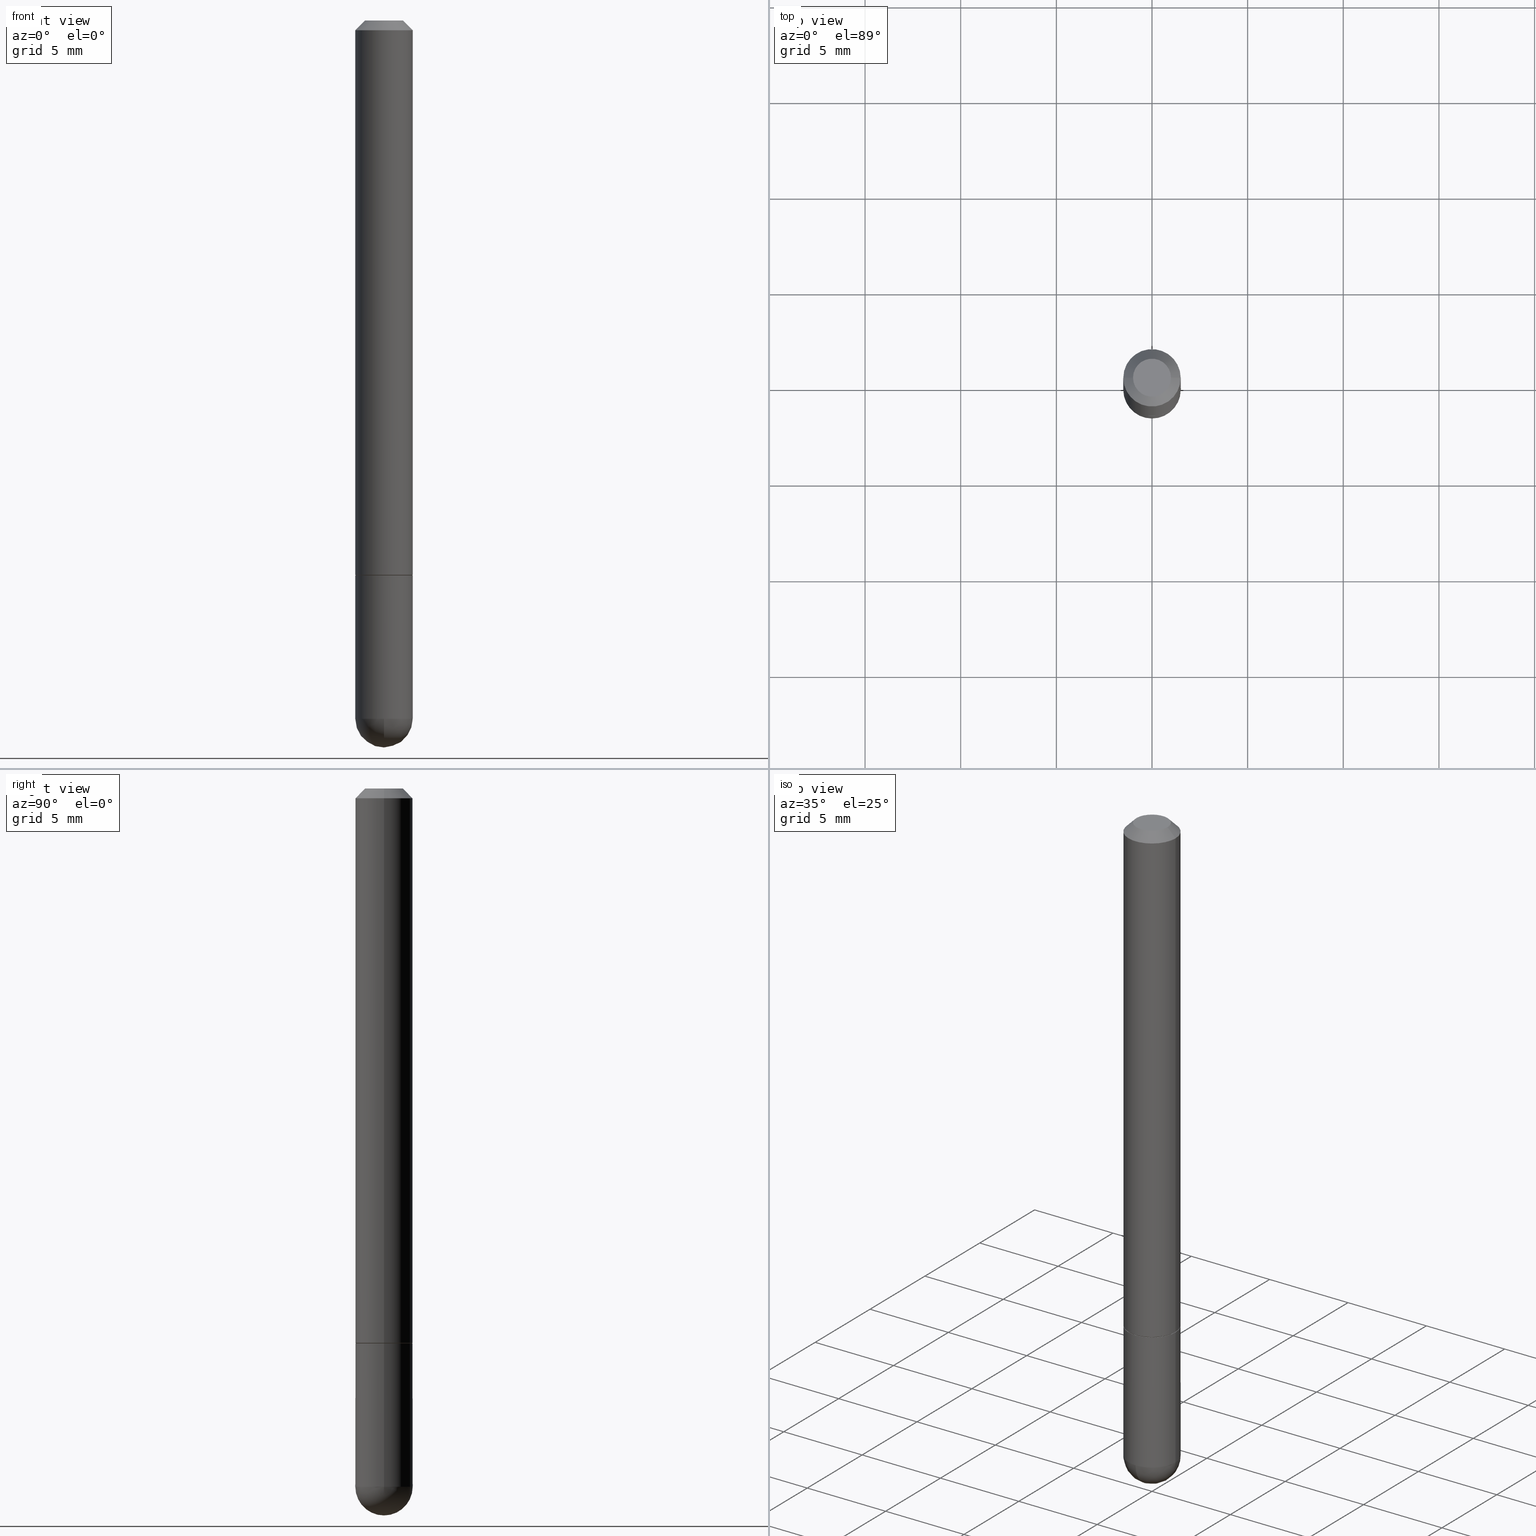
[diagram: canonical four-view strip — front | top / right | iso, engineering-drawing reading convention]
A machine part, canonical four-view strip (front | top / right | iso — engineering-drawing reading convention). The complete STEP part file that produces these views, byte-faithful:
ISO-10303-21;
HEADER;
FILE_DESCRIPTION (( 'STEP AP203' ),
    '1' );
FILE_NAME ('02979.STEP',
    '2024-02-21T16:34:43',
    ( '' ),
    ( '' ),
    'SwSTEP 2.0',
    'SolidWorks 2023',
    '' );
FILE_SCHEMA (( 'CONFIG_CONTROL_DESIGN' ));
ENDSEC;

DATA;
#1 = DIRECTION ( 'NONE',  ( 2.438088387897960049E-29, -3.491481338843145188E-15, -1.000000000000000000 ) ) ;
#2 = CIRCLE ( 'NONE', #124, 0.05905000000000000526 ) ;
#3 = LINE ( 'NONE', #385, #373 ) ;
#4 = PERSON_AND_ORGANIZATION ( #358, #25 ) ;
#5 = FACE_OUTER_BOUND ( 'NONE', #172, .T. ) ;
#6 = DIRECTION ( 'NONE',  ( 6.982962677686265922E-15, 1.000000000000000000, -4.626330217890349615E-15 ) ) ;
#7 = CARTESIAN_POINT ( 'NONE',  ( 3.183141170014464762E-29, -5.491615626124592102E-15, -1.437049999999999939 ) ) ;
#8 = VERTEX_POINT ( 'NONE', #74 ) ;
#9 = EDGE_LOOP ( 'NONE', ( #109, #371 ) ) ;
#10 = CARTESIAN_POINT ( 'NONE',  ( 0.05905000000000000526, -4.749420335452719692E-16, -0.02000000000000002123 ) ) ;
#11 = ORIENTED_EDGE ( 'NONE', *, *, #61, .T. ) ;
#12 = DIRECTION ( 'NONE',  ( -2.445468806185136597E-29, 3.491481338843145583E-15, 1.000000000000000000 ) ) ;
#13 = DIRECTION ( 'NONE',  ( 1.000000000000000000, -6.982962677686272233E-15, 0.000000000000000000 ) ) ;
#14 = VERTEX_POINT ( 'NONE', #170 ) ;
#15 = CIRCLE ( 'NONE', #31, 0.03905000000000004301 ) ;
#16 = CARTESIAN_POINT ( 'NONE',  ( 0.05905000000000000526, -4.749420335452719692E-16, -0.02000000000000002123 ) ) ;
#17 = CARTESIAN_POINT ( 'NONE',  ( 3.514260947928350449E-29, -5.017433257984542594E-15, -1.437049999999999939 ) ) ;
#18 = DIRECTION ( 'NONE',  ( -2.445468806185136597E-29, 3.491481338843145583E-15, 1.000000000000000000 ) ) ;
#19 = EDGE_LOOP ( 'NONE', ( #348, #47 ) ) ;
#20 = AXIS2_PLACEMENT_3D ( 'NONE', #121, #24, #210 ) ;
#21 = CLOSED_SHELL ( 'NONE', ( #95, #294, #126, #240, #145 ) ) ;
#22 = ORIENTED_EDGE ( 'NONE', *, *, #232, .F. ) ;
#23 = PERSON_AND_ORGANIZATION_ROLE ( 'design_owner' ) ;
#24 = DIRECTION ( 'NONE',  ( -2.445468806185136597E-29, 3.491481338843145583E-15, 1.000000000000000000 ) ) ;
#25 = ORGANIZATION ( 'UNSPECIFIED', 'UNSPECIFIED', '' ) ;
#26 = EDGE_CURVE ( 'NONE', #278, #397, #33, .T. ) ;
#27 = SECURITY_CLASSIFICATION_LEVEL ( 'unclassified' ) ;
#28 =( NAMED_UNIT ( * ) PLANE_ANGLE_UNIT ( ) SI_UNIT ( $, .RADIAN. ) );
#29 = VECTOR ( 'NONE', #69, 39.37007874015748143 ) ;
#30 = DESIGN_CONTEXT ( 'detailed design', #340, 'design' ) ;
#31 = AXIS2_PLACEMENT_3D ( 'NONE', #171, #207, #342 ) ;
#32 = CARTESIAN_POINT ( 'NONE',  ( 2.726846925636489647E-16, 0.03905000000000004301, -1.427451150169756154E-16 ) ) ;
#33 = LINE ( 'NONE', #369, #114 ) ;
#34 = APPROVAL_PERSON_ORGANIZATION ( #405, #186, #249 ) ;
#35 = AXIS2_PLACEMENT_3D ( 'NONE', #195, #301, #6 ) ;
#36 = CC_DESIGN_DATE_AND_TIME_ASSIGNMENT ( #248, #254, ( #260 ) ) ;
#37 = CARTESIAN_POINT ( 'NONE',  ( 2.792236282902187945E-29, -3.986573392691102533E-15, -1.141799999999999704 ) ) ;
#38 = DIRECTION ( 'NONE',  ( -2.445468806185136597E-29, 3.491481338843145583E-15, 1.000000000000000000 ) ) ;
#39 = VERTEX_POINT ( 'NONE', #44 ) ;
#40 = DIRECTION ( 'NONE',  ( -2.445468806185136597E-29, 3.491481338843145583E-15, 1.000000000000000000 ) ) ;
#41 = CARTESIAN_POINT ( 'NONE',  ( 2.792236282902187945E-29, -3.986573392691102533E-15, -1.141799999999999704 ) ) ;
#42 = ADVANCED_FACE ( 'NONE', ( #388 ), #307, .T. ) ;
#43 = ORIENTED_EDGE ( 'NONE', *, *, #213, .T. ) ;
#44 = CARTESIAN_POINT ( 'NONE',  ( -0.05905000000000001914, -4.082427839871483465E-15, -1.437049999999999939 ) ) ;
#45 = DIRECTION ( 'NONE',  ( -1.000000000000000000, 6.982962677686267499E-15, 0.000000000000000000 ) ) ;
#46 = LOCAL_TIME ( 11, 34, 43.00000000000000000, #376 ) ;
#47 = ORIENTED_EDGE ( 'NONE', *, *, #370, .T. ) ;
#48 = CARTESIAN_POINT ( 'NONE',  ( 2.792236282902188505E-29, -3.986573392691103322E-15, -1.141799999999999926 ) ) ;
#49 = DIRECTION ( 'NONE',  ( 1.000000000000000000, -6.982962677686267499E-15, 0.000000000000000000 ) ) ;
#50 = ORIENTED_EDGE ( 'NONE', *, *, #190, .T. ) ;
#51 = ADVANCED_BREP_SHAPE_REPRESENTATION ( '02979', ( #272, #127, #204 ), #220 ) ;
#52 = VECTOR ( 'NONE', #179, 39.37007874015748143 ) ;
#53 = ORIENTED_EDGE ( 'NONE', *, *, #398, .F. ) ;
#54 = CARTESIAN_POINT ( 'NONE',  ( 4.123439461174083974E-16, 0.05904999999999487742, -1.437050000000000161 ) ) ;
#55 = VERTEX_POINT ( 'NONE', #364 ) ;
#56 = CC_DESIGN_PERSON_AND_ORGANIZATION_ASSIGNMENT ( #4, #123, ( #349 ) ) ;
#57 = AXIS2_PLACEMENT_3D ( 'NONE', #299, #40, #275 ) ;
#58 = DIRECTION ( 'NONE',  ( -2.445468806185136597E-29, 3.491481338843145583E-15, 1.000000000000000000 ) ) ;
#59 = PERSON_AND_ORGANIZATION_ROLE ( 'classification_officer' ) ;
#60 = DIRECTION ( 'NONE',  ( 1.000000000000000000, -6.982962677686272233E-15, 0.000000000000000000 ) ) ;
#61 = EDGE_CURVE ( 'NONE', #79, #8, #351, .T. ) ;
#62 = COORDINATED_UNIVERSAL_TIME_OFFSET ( 5, 0, .BEHIND. ) ;
#63 = AXIS2_PLACEMENT_3D ( 'NONE', #81, #12, #105 ) ;
#64 = MECHANICAL_CONTEXT ( 'NONE', #73, 'mechanical' ) ;
#65 = LINE ( 'NONE', #188, #387 ) ;
#66 = ADVANCED_FACE ( 'NONE', ( #132 ), #279, .F. ) ;
#67 = CC_DESIGN_APPROVAL ( #284, ( #260 ) ) ;
#68 = CIRCLE ( 'NONE', #395, 0.05905000000000000526 ) ;
#69 = DIRECTION ( 'NONE',  ( -2.445468806185136877E-29, 3.491481338843145188E-15, 1.000000000000000000 ) ) ;
#70 = EDGE_CURVE ( 'NONE', #8, #79, #93, .T. ) ;
#71 = CARTESIAN_POINT ( 'NONE',  ( 3.330070981488499955E-29, -5.694171829508798064E-15, -1.496100000000000207 ) ) ;
#72 = PLANE ( 'NONE',  #216 ) ;
#73 = APPLICATION_CONTEXT ( 'configuration controlled 3d designs of mechanical parts and assemblies' ) ;
#74 = CARTESIAN_POINT ( 'NONE',  ( -0.05804999999999999744, -3.568804880234141646E-15, -1.141799999999999704 ) ) ;
#75 = ORIENTED_EDGE ( 'NONE', *, *, #410, .T. ) ;
#76 = CARTESIAN_POINT ( 'NONE',  ( 0.000000000000000000, 0.000000000000000000, 0.000000000000000000 ) ) ;
#77 = DIRECTION ( 'NONE',  ( -2.445468806185136597E-29, 3.491481338843145583E-15, 1.000000000000000000 ) ) ;
#78 = ORIENTED_EDGE ( 'NONE', *, *, #263, .F. ) ;
#79 = VERTEX_POINT ( 'NONE', #100 ) ;
#80 = EDGE_LOOP ( 'NONE', ( #11, #85, #112, #343 ) ) ;
#81 = CARTESIAN_POINT ( 'NONE',  ( 0.000000000000000000, 0.000000000000000000, 0.000000000000000000 ) ) ;
#82 = DIRECTION ( 'NONE',  ( 1.000000000000000000, -6.982962677686265133E-15, 0.000000000000000000 ) ) ;
#83 = VERTEX_POINT ( 'NONE', #71 ) ;
#84 =( LENGTH_UNIT ( ) NAMED_UNIT ( * ) SI_UNIT ( $, .METRE. ) );
#85 = ORIENTED_EDGE ( 'NONE', *, *, #253, .T. ) ;
#86 = CARTESIAN_POINT ( 'NONE',  ( 0.000000000000000000, 0.000000000000000000, 0.000000000000000000 ) ) ;
#87 = VERTEX_POINT ( 'NONE', #16 ) ;
#88 = AXIS2_PLACEMENT_3D ( 'NONE', #37, #332, #205 ) ;
#89 = APPROVAL_STATUS ( 'not_yet_approved' ) ;
#90 = DIRECTION ( 'NONE',  ( -7.105427357601001070E-15, -1.000000000000000000, 0.000000000000000000 ) ) ;
#91 = DIMENSIONAL_EXPONENTS ( 1.000000000000000000, 0.000000000000000000, 0.000000000000000000, 0.000000000000000000, 0.000000000000000000, 0.000000000000000000, 0.000000000000000000 ) ;
#92 = APPLICATION_PROTOCOL_DEFINITION ( 'international standard', 'config_control_design', 1994, #73 ) ;
#93 = CIRCLE ( 'NONE', #57, 0.05804999999999999744 ) ;
#94 = DIRECTION ( 'NONE',  ( -1.000000000000000000, 6.982962677686265922E-15, -4.876176775795935793E-29 ) ) ;
#95 = ADVANCED_FACE ( 'NONE', ( #5 ), #134, .T. ) ;
#96 = EDGE_CURVE ( 'NONE', #79, #394, #396, .T. ) ;
#97 = LINE ( 'NONE', #224, #29 ) ;
#98 = CALENDAR_DATE ( 2024, 21, 2 ) ;
#99 = VECTOR ( 'NONE', #293, 39.37007874015748143 ) ;
#100 = CARTESIAN_POINT ( 'NONE',  ( 0.05804999999999999744, -4.391934376130790650E-15, -1.141799999999999704 ) ) ;
#101 = SPHERICAL_SURFACE ( 'NONE', #178, 0.05905000000000025506 ) ;
#102 = FACE_OUTER_BOUND ( 'NONE', #147, .T. ) ;
#103 = DIRECTION ( 'NONE',  ( 1.000000000000000000, -6.982962677686272233E-15, 0.000000000000000000 ) ) ;
#104 = ORIENTED_EDGE ( 'NONE', *, *, #61, .F. ) ;
#105 = DIRECTION ( 'NONE',  ( 1.000000000000000000, -6.982962677686266711E-15, 4.876176775795936353E-29 ) ) ;
#106 = FACE_OUTER_BOUND ( 'NONE', #283, .T. ) ;
#107 = ORIENTED_EDGE ( 'NONE', *, *, #410, .F. ) ;
#108 = AXIS2_PLACEMENT_3D ( 'NONE', #305, #312, #82 ) ;
#109 = ORIENTED_EDGE ( 'NONE', *, *, #129, .T. ) ;
#110 = CARTESIAN_POINT ( 'NONE',  ( -0.05804999999999999744, -3.574103334582364048E-15, -1.141799999999999704 ) ) ;
#111 = ORIENTED_EDGE ( 'NONE', *, *, #370, .F. ) ;
#112 = ORIENTED_EDGE ( 'NONE', *, *, #119, .F. ) ;
#113 = CARTESIAN_POINT ( 'NONE',  ( -4.195754854663065087E-16, -0.05905000000000538291, -1.437049999999999716 ) ) ;
#114 = VECTOR ( 'NONE', #236, 39.37007874015748143 ) ;
#115 = CC_DESIGN_PERSON_AND_ORGANIZATION_ASSIGNMENT ( #184, #319, ( #177 ) ) ;
#116 = DIRECTION ( 'NONE',  ( -2.445468806185136597E-29, 3.491481338843145583E-15, 1.000000000000000000 ) ) ;
#117 = CARTESIAN_POINT ( 'NONE',  ( 3.131554243005667043E-46, -4.471029511141352822E-32, -1.280553747030126465E-17 ) ) ;
#118 = ORIENTED_EDGE ( 'NONE', *, *, #287, .T. ) ;
#119 = EDGE_CURVE ( 'NONE', #394, #281, #221, .T. ) ;
#120 = APPROVAL_STATUS ( 'not_yet_approved' ) ;
#121 = CARTESIAN_POINT ( 'NONE',  ( 2.789790814096003463E-29, -3.983081911352260315E-15, -1.140799999999999814 ) ) ;
#122 = CIRCLE ( 'NONE', #266, 0.05905000000000000526 ) ;
#123 = PERSON_AND_ORGANIZATION_ROLE ( 'design_supplier' ) ;
#124 = AXIS2_PLACEMENT_3D ( 'NONE', #245, #151, #60 ) ;
#125 = SHAPE_DEFINITION_REPRESENTATION ( #194, #51 ) ;
#126 = ADVANCED_FACE ( 'NONE', ( #359 ), #198, .T. ) ;
#127 = MANIFOLD_SOLID_BREP ( 'Body-Move/Copy2[2]', #242 ) ;
#128 = DIRECTION ( 'NONE',  ( 1.000000000000000000, -6.982962677686272233E-15, 0.000000000000000000 ) ) ;
#129 = EDGE_CURVE ( 'NONE', #274, #200, #160, .T. ) ;
#130 = DIRECTION ( 'NONE',  ( 1.000000000000000000, -6.982962677686266711E-15, 4.876176775795936353E-29 ) ) ;
#131 = AXIS2_PLACEMENT_3D ( 'NONE', #41, #38, #103 ) ;
#132 = FACE_OUTER_BOUND ( 'NONE', #149, .T. ) ;
#133 = CARTESIAN_POINT ( 'NONE',  ( 3.183141170014464762E-29, -5.491615626124592102E-15, -1.437049999999999939 ) ) ;
#134 = CYLINDRICAL_SURFACE ( 'NONE', #402, 0.05904999999999999832 ) ;
#135 = LOCAL_TIME ( 11, 34, 43.00000000000000000, #152 ) ;
#136 = CARTESIAN_POINT ( 'NONE',  ( 2.792236282902187945E-29, -3.986573392691102533E-15, -1.141799999999999704 ) ) ;
#137 = ORIENTED_EDGE ( 'NONE', *, *, #26, .F. ) ;
#138 = DIRECTION ( 'NONE',  ( 1.000000000000000000, -6.982962677686265922E-15, 4.876176775795935793E-29 ) ) ;
#139 = DIRECTION ( 'NONE',  ( 2.438088387897960049E-29, -3.491481338843145188E-15, -1.000000000000000000 ) ) ;
#140 = ORIENTED_EDGE ( 'NONE', *, *, #129, .F. ) ;
#141 = CIRCLE ( 'NONE', #379, 0.05905000000000000526 ) ;
#142 = ORIENTED_EDGE ( 'NONE', *, *, #154, .T. ) ;
#143 = CARTESIAN_POINT ( 'NONE',  ( 4.890937612370278413E-31, -6.982962677686297772E-17, -0.02000000000000002123 ) ) ;
#144 = ORIENTED_EDGE ( 'NONE', *, *, #346, .T. ) ;
#145 = ADVANCED_FACE ( 'NONE', ( #102 ), #230, .T. ) ;
#146 = CARTESIAN_POINT ( 'NONE',  ( 4.890937612370278413E-31, -6.982962677686297772E-17, -0.02000000000000002123 ) ) ;
#147 = EDGE_LOOP ( 'NONE', ( #285, #142, #144, #390, #308 ) ) ;
#148 = CIRCLE ( 'NONE', #215, 0.05905000000000000526 ) ;
#149 = EDGE_LOOP ( 'NONE', ( #104, #246 ) ) ;
#150 = CALENDAR_DATE ( 2024, 21, 2 ) ;
#151 = DIRECTION ( 'NONE',  ( -2.445468806185136597E-29, 3.491481338843145583E-15, 1.000000000000000000 ) ) ;
#152 = COORDINATED_UNIVERSAL_TIME_OFFSET ( 5, 0, .BEHIND. ) ;
#153 = LOCAL_TIME ( 11, 34, 43.00000000000000000, #62 ) ;
#154 = EDGE_CURVE ( 'NONE', #39, #337, #148, .T. ) ;
#155 = AXIS2_PLACEMENT_3D ( 'NONE', #403, #372, #185 ) ;
#156 = DIRECTION ( 'NONE',  ( 1.000000000000000000, 0.000000000000000000, 0.000000000000000000 ) ) ;
#157 = ADVANCED_FACE ( 'NONE', ( #256 ), #383, .F. ) ;
#158 = DIRECTION ( 'NONE',  ( -2.445468806185136877E-29, 3.491481338843145188E-15, 1.000000000000000000 ) ) ;
#159 = CIRCLE ( 'NONE', #320, 0.05905000000000025506 ) ;
#160 = CIRCLE ( 'NONE', #182, 0.05904999999999999832 ) ;
#161 = EDGE_CURVE ( 'NONE', #87, #397, #409, .T. ) ;
#162 = AXIS2_PLACEMENT_3D ( 'NONE', #365, #368, #45 ) ;
#163 = DIRECTION ( 'NONE',  ( 1.000000000000000000, -6.982962677686267499E-15, 0.000000000000000000 ) ) ;
#164 = EDGE_LOOP ( 'NONE', ( #209, #233, #203, #235 ) ) ;
#165 = DIRECTION ( 'NONE',  ( -2.445468806185136597E-29, 3.491481338843145583E-15, 1.000000000000000000 ) ) ;
#166 = ORIENTED_EDGE ( 'NONE', *, *, #161, .F. ) ;
#167 = CARTESIAN_POINT ( 'NONE',  ( 0.05804999999999999744, -4.391934376130790650E-15, -1.141799999999999704 ) ) ;
#168 = ORIENTED_EDGE ( 'NONE', *, *, #398, .T. ) ;
#169 = LOCAL_TIME ( 11, 34, 43.00000000000000000, #223 ) ;
#170 = CARTESIAN_POINT ( 'NONE',  ( 0.05905000000000001914, -4.914347271455197089E-15, -1.437049999999999939 ) ) ;
#171 = CARTESIAN_POINT ( 'NONE',  ( 3.131554243005667043E-46, -4.471029511141352822E-32, -1.280553747030126465E-17 ) ) ;
#172 = EDGE_LOOP ( 'NONE', ( #375, #176, #140, #316, #75 ) ) ;
#173 = EDGE_CURVE ( 'NONE', #39, #200, #3, .T. ) ;
#174 = EDGE_LOOP ( 'NONE', ( #269, #366, #238, #345 ) ) ;
#175 = FACE_OUTER_BOUND ( 'NONE', #338, .T. ) ;
#176 = ORIENTED_EDGE ( 'NONE', *, *, #173, .T. ) ;
#177 = PRODUCT_DEFINITION ( 'UNKNOWN', '', #349, #30 ) ;
#178 = AXIS2_PLACEMENT_3D ( 'NONE', #133, #268, #389 ) ;
#179 = DIRECTION ( 'NONE',  ( -0.7071067811866652564, 7.493145998870780145E-15, 0.7071067811864297781 ) ) ;
#180 = DIRECTION ( 'NONE',  ( 1.000000000000000000, -6.982962677686272233E-15, 0.000000000000000000 ) ) ;
#181 = EDGE_LOOP ( 'NONE', ( #303, #43, #166, #363 ) ) ;
#182 = AXIS2_PLACEMENT_3D ( 'NONE', #48, #227, #267 ) ;
#183 = PERSON_AND_ORGANIZATION ( #358, #25 ) ;
#184 = PERSON_AND_ORGANIZATION ( #358, #25 ) ;
#185 = DIRECTION ( 'NONE',  ( 1.000000000000000000, -6.982962677686266711E-15, 4.876176775795936353E-29 ) ) ;
#186 = APPROVAL ( #120, 'UNSPECIFIED' ) ;
#187 = CIRCLE ( 'NONE', #108, 0.05904999999999999832 ) ;
#188 = CARTESIAN_POINT ( 'NONE',  ( 0.05905000000000006771, -4.123439461173745257E-16, 2.879382386107503723E-30 ) ) ;
#189 = CARTESIAN_POINT ( 'NONE',  ( 4.890937612370278413E-31, -6.982962677686297772E-17, -0.02000000000000002123 ) ) ;
#190 = EDGE_CURVE ( 'NONE', #394, #87, #65, .T. ) ;
#191 = LINE ( 'NONE', #329, #99 ) ;
#192 = PERSON_AND_ORGANIZATION_ROLE ( 'creator' ) ;
#193 = LOCAL_TIME ( 11, 34, 43.00000000000000000, #411 ) ;
#194 = PRODUCT_DEFINITION_SHAPE ( 'NONE', 'NONE',  #177 ) ;
#195 = CARTESIAN_POINT ( 'NONE',  ( 3.183141170014464762E-29, -5.491615626124592102E-15, -1.437049999999999939 ) ) ;
#196 = CARTESIAN_POINT ( 'NONE',  ( -0.05905000000000013710, -1.606880283598219355E-15, -1.140799999999999814 ) ) ;
#197 = APPROVAL ( #225, 'UNSPECIFIED' ) ;
#198 = SPHERICAL_SURFACE ( 'NONE', #35, 0.05905000000000025506 ) ;
#199 = DIRECTION ( 'NONE',  ( 0.7071067811865467956, -7.319954787623254468E-15, -0.7071067811865482389 ) ) ;
#200 = VERTEX_POINT ( 'NONE', #261 ) ;
#201 = ORIENTED_EDGE ( 'NONE', *, *, #213, .F. ) ;
#202 = DIRECTION ( 'NONE',  ( -2.445468806185136597E-29, 3.491481338843145583E-15, 1.000000000000000000 ) ) ;
#203 = ORIENTED_EDGE ( 'NONE', *, *, #96, .T. ) ;
#204 = AXIS2_PLACEMENT_3D ( 'NONE', #86, #347, #156 ) ;
#205 = DIRECTION ( 'NONE',  ( 1.000000000000000000, -6.982962677686272233E-15, 0.000000000000000000 ) ) ;
#206 = EDGE_CURVE ( 'NONE', #14, #274, #97, .T. ) ;
#207 = DIRECTION ( 'NONE',  ( -2.445468806185136597E-29, 3.491481338843145583E-15, 1.000000000000000000 ) ) ;
#208 = LINE ( 'NONE', #10, #344 ) ;
#209 = ORIENTED_EDGE ( 'NONE', *, *, #253, .F. ) ;
#210 = DIRECTION ( 'NONE',  ( 1.000000000000000000, -6.982962677686265133E-15, 0.000000000000000000 ) ) ;
#211 = APPROVAL_PERSON_ORGANIZATION ( #330, #197, #326 ) ;
#212 = AXIS2_PLACEMENT_3D ( 'NONE', #76, #361, #333 ) ;
#213 = EDGE_CURVE ( 'NONE', #281, #397, #191, .T. ) ;
#214 = CYLINDRICAL_SURFACE ( 'NONE', #155, 0.05905000000000006771 ) ;
#215 = AXIS2_PLACEMENT_3D ( 'NONE', #270, #296, #128 ) ;
#216 = AXIS2_PLACEMENT_3D ( 'NONE', #302, #139, #362 ) ;
#217 = CALENDAR_DATE ( 2024, 21, 2 ) ;
#218 = APPROVAL_DATE_TIME ( #380, #284 ) ;
#219 = CC_DESIGN_PERSON_AND_ORGANIZATION_ASSIGNMENT ( #292, #59, ( #260 ) ) ;
#220 =( GEOMETRIC_REPRESENTATION_CONTEXT ( 3 ) GLOBAL_UNCERTAINTY_ASSIGNED_CONTEXT ( ( #314 ) ) GLOBAL_UNIT_ASSIGNED_CONTEXT ( ( #290, #28, #322 ) ) REPRESENTATION_CONTEXT ( 'NONE', 'WORKASPACE' ) );
#221 = CIRCLE ( 'NONE', #315, 0.05905000000000013016 ) ;
#222 = CALENDAR_DATE ( 2024, 21, 2 ) ;
#223 = COORDINATED_UNIVERSAL_TIME_OFFSET ( 5, 0, .BEHIND. ) ;
#224 = CARTESIAN_POINT ( 'NONE',  ( 0.05904999999999999832, -4.123439461173740327E-16, 2.879382386107500220E-30 ) ) ;
#225 = APPROVAL_STATUS ( 'not_yet_approved' ) ;
#226 = CONICAL_SURFACE ( 'NONE', #131, 0.05804999999999999744, 0.7853981633976148125 ) ;
#227 = DIRECTION ( 'NONE',  ( -2.445468806185136597E-29, 3.491481338843145583E-15, 1.000000000000000000 ) ) ;
#228 = LINE ( 'NONE', #110, #52 ) ;
#229 = CC_DESIGN_DATE_AND_TIME_ASSIGNMENT ( #300, #360, ( #177 ) ) ;
#230 = CYLINDRICAL_SURFACE ( 'NONE', #212, 0.05904999999999999832 ) ;
#231 = VECTOR ( 'NONE', #367, 39.37007874015748143 ) ;
#232 = EDGE_CURVE ( 'NONE', #374, #39, #68, .T. ) ;
#233 = ORIENTED_EDGE ( 'NONE', *, *, #70, .T. ) ;
#234 = FACE_OUTER_BOUND ( 'NONE', #80, .T. ) ;
#235 = ORIENTED_EDGE ( 'NONE', *, *, #355, .F. ) ;
#236 = DIRECTION ( 'NONE',  ( -0.7071067811865467956, 2.468850131082249172E-15, -0.7071067811865482389 ) ) ;
#237 = FACE_OUTER_BOUND ( 'NONE', #174, .T. ) ;
#238 = ORIENTED_EDGE ( 'NONE', *, *, #26, .T. ) ;
#239 = ORIENTED_EDGE ( 'NONE', *, *, #161, .T. ) ;
#240 = ADVANCED_FACE ( 'NONE', ( #241 ), #72, .F. ) ;
#241 = FACE_OUTER_BOUND ( 'NONE', #9, .T. ) ;
#242 = CLOSED_SHELL ( 'NONE', ( #298, #42, #328, #318, #350, #262, #66, #157 ) ) ;
#243 = EDGE_LOOP ( 'NONE', ( #53, #118, #107, #306 ) ) ;
#244 = APPROVAL_DATE_TIME ( #407, #186 ) ;
#245 = CARTESIAN_POINT ( 'NONE',  ( 3.514260947928350449E-29, -5.017433257984542594E-15, -1.437049999999999939 ) ) ;
#246 = ORIENTED_EDGE ( 'NONE', *, *, #70, .F. ) ;
#247 = EDGE_CURVE ( 'NONE', #200, #274, #187, .T. ) ;
#248 = DATE_AND_TIME ( #150, #153 ) ;
#249 = APPROVAL_ROLE ( '' ) ;
#250 = EDGE_CURVE ( 'NONE', #55, #87, #208, .T. ) ;
#251 = DIRECTION ( 'NONE',  ( 1.000000000000000000, -6.982962677686266711E-15, 4.878561691827482436E-29 ) ) ;
#252 = CIRCLE ( 'NONE', #20, 0.05905000000000013016 ) ;
#253 = EDGE_CURVE ( 'NONE', #8, #281, #228, .T. ) ;
#254 = DATE_TIME_ROLE ( 'classification_date' ) ;
#255 = CALENDAR_DATE ( 2024, 21, 2 ) ;
#256 = FACE_OUTER_BOUND ( 'NONE', #19, .T. ) ;
#257 = AXIS2_PLACEMENT_3D ( 'NONE', #117, #116, #251 ) ;
#258 = AXIS2_PLACEMENT_3D ( 'NONE', #331, #399, #138 ) ;
#259 = DATE_AND_TIME ( #98, #169 ) ;
#260 = SECURITY_CLASSIFICATION ( '', '', #27 ) ;
#261 = CARTESIAN_POINT ( 'NONE',  ( -0.05904999999999999832, -4.082427839871483465E-15, -1.141799999999999926 ) ) ;
#262 = ADVANCED_FACE ( 'NONE', ( #273 ), #291, .T. ) ;
#263 = EDGE_CURVE ( 'NONE', #397, #87, #122, .T. ) ;
#264 = PERSON_AND_ORGANIZATION ( #358, #25 ) ;
#265 = CARTESIAN_POINT ( 'NONE',  ( 2.789790814096003463E-29, -3.983081911352260315E-15, -1.140799999999999814 ) ) ;
#266 = AXIS2_PLACEMENT_3D ( 'NONE', #146, #202, #49 ) ;
#267 = DIRECTION ( 'NONE',  ( 1.000000000000000000, -6.982962677686265133E-15, 0.000000000000000000 ) ) ;
#268 = DIRECTION ( 'NONE',  ( -1.000000000000000000, 6.982962677686265922E-15, -4.883557194083112340E-29 ) ) ;
#269 = ORIENTED_EDGE ( 'NONE', *, *, #250, .F. ) ;
#270 = CARTESIAN_POINT ( 'NONE',  ( 3.514260947928350449E-29, -5.017433257984542594E-15, -1.437049999999999939 ) ) ;
#271 = CARTESIAN_POINT ( 'NONE',  ( 0.000000000000000000, 0.000000000000000000, 0.000000000000000000 ) ) ;
#272 = MANIFOLD_SOLID_BREP ( 'Body-Move/Copy2[1]', #21 ) ;
#273 = FACE_OUTER_BOUND ( 'NONE', #164, .T. ) ;
#274 = VERTEX_POINT ( 'NONE', #334 ) ;
#275 = DIRECTION ( 'NONE',  ( 1.000000000000000000, -6.982962677686272233E-15, 0.000000000000000000 ) ) ;
#276 = DIRECTION ( 'NONE',  ( 1.000000000000000000, -6.982962677686265922E-15, 4.883557194083112340E-29 ) ) ;
#277 = CONICAL_SURFACE ( 'NONE', #327, 0.05905000000000000526, 0.7853981633974472798 ) ;
#278 = VERTEX_POINT ( 'NONE', #393 ) ;
#279 = PLANE ( 'NONE',  #258 ) ;
#280 = DIRECTION ( 'NONE',  ( 2.445468806185136597E-29, -3.491481338843145583E-15, -1.000000000000000000 ) ) ;
#281 = VERTEX_POINT ( 'NONE', #196 ) ;
#282 = DIRECTION ( 'NONE',  ( 6.982962677686266711E-15, 1.000000000000000000, 0.000000000000000000 ) ) ;
#283 = EDGE_LOOP ( 'NONE', ( #404, #168, #309, #22 ) ) ;
#284 = APPROVAL ( #89, 'UNSPECIFIED' ) ;
#285 = ORIENTED_EDGE ( 'NONE', *, *, #173, .F. ) ;
#286 = APPLICATION_PROTOCOL_DEFINITION ( 'international standard', 'config_control_design', 1994, #340 ) ;
#287 = EDGE_CURVE ( 'NONE', #83, #374, #356, .T. ) ;
#288 = APPROVAL_PERSON_ORGANIZATION ( #183, #284, #382 ) ;
#289 = FACE_OUTER_BOUND ( 'NONE', #304, .T. ) ;
#290 =( CONVERSION_BASED_UNIT ( 'INCH', #323 ) LENGTH_UNIT ( ) NAMED_UNIT ( #91 ) );
#291 = CONICAL_SURFACE ( 'NONE', #311, 0.05804999999999999744, 0.7853981633976148125 ) ;
#292 = PERSON_AND_ORGANIZATION ( #358, #25 ) ;
#293 = DIRECTION ( 'NONE',  ( -2.445468806185136877E-29, 3.491481338843145188E-15, 1.000000000000000000 ) ) ;
#294 = ADVANCED_FACE ( 'NONE', ( #106 ), #101, .T. ) ;
#295 = AXIS2_PLACEMENT_3D ( 'NONE', #189, #386, #163 ) ;
#296 = DIRECTION ( 'NONE',  ( -2.445468806185136597E-29, 3.491481338843145583E-15, 1.000000000000000000 ) ) ;
#297 = CC_DESIGN_APPROVAL ( #197, ( #349 ) ) ;
#298 = ADVANCED_FACE ( 'NONE', ( #234 ), #226, .T. ) ;
#299 = CARTESIAN_POINT ( 'NONE',  ( 2.792236282902187945E-29, -3.986573392691102533E-15, -1.141799999999999704 ) ) ;
#300 = DATE_AND_TIME ( #217, #135 ) ;
#301 = DIRECTION ( 'NONE',  ( -1.000000000000000000, 6.982962677686265922E-15, -4.883557194083112340E-29 ) ) ;
#302 = CARTESIAN_POINT ( 'NONE',  ( 4.123439461174018893E-16, 0.05904999999999601540, -1.141800000000000148 ) ) ;
#303 = ORIENTED_EDGE ( 'NONE', *, *, #119, .T. ) ;
#304 = EDGE_LOOP ( 'NONE', ( #201, #313, #50, #78 ) ) ;
#305 = CARTESIAN_POINT ( 'NONE',  ( 2.792236282902188505E-29, -3.986573392691103322E-15, -1.141799999999999926 ) ) ;
#306 = ORIENTED_EDGE ( 'NONE', *, *, #346, .F. ) ;
#307 = CYLINDRICAL_SURFACE ( 'NONE', #63, 0.05905000000000006771 ) ;
#308 = ORIENTED_EDGE ( 'NONE', *, *, #247, .F. ) ;
#309 = ORIENTED_EDGE ( 'NONE', *, *, #154, .F. ) ;
#310 = DIRECTION ( 'NONE',  ( 1.000000000000000000, -6.982962677686272233E-15, 0.000000000000000000 ) ) ;
#311 = AXIS2_PLACEMENT_3D ( 'NONE', #136, #18, #13 ) ;
#312 = DIRECTION ( 'NONE',  ( -2.445468806185136597E-29, 3.491481338843145583E-15, 1.000000000000000000 ) ) ;
#313 = ORIENTED_EDGE ( 'NONE', *, *, #355, .T. ) ;
#314 = UNCERTAINTY_MEASURE_WITH_UNIT (LENGTH_MEASURE( 1.000000000000000082E-05 ), #290, 'distance_accuracy_value', 'NONE');
#315 = AXIS2_PLACEMENT_3D ( 'NONE', #265, #392, #341 ) ;
#316 = ORIENTED_EDGE ( 'NONE', *, *, #206, .F. ) ;
#317 = PERSON_AND_ORGANIZATION ( #358, #25 ) ;
#318 = ADVANCED_FACE ( 'NONE', ( #237 ), #353, .T. ) ;
#319 = PERSON_AND_ORGANIZATION_ROLE ( 'creator' ) ;
#320 = AXIS2_PLACEMENT_3D ( 'NONE', #352, #381, #90 ) ;
#321 = CC_DESIGN_APPROVAL ( #186, ( #177 ) ) ;
#322 =( NAMED_UNIT ( * ) SI_UNIT ( $, .STERADIAN. ) SOLID_ANGLE_UNIT ( ) );
#323 = LENGTH_MEASURE_WITH_UNIT ( LENGTH_MEASURE( 0.02539999999999999897 ), #84 );
#324 = AXIS2_PLACEMENT_3D ( 'NONE', #7, #276, #282 ) ;
#325 = EDGE_CURVE ( 'NONE', #278, #55, #15, .T. ) ;
#326 = APPROVAL_ROLE ( '' ) ;
#327 = AXIS2_PLACEMENT_3D ( 'NONE', #143, #280, #400 ) ;
#328 = ADVANCED_FACE ( 'NONE', ( #175 ), #277, .T. ) ;
#329 = CARTESIAN_POINT ( 'NONE',  ( -0.05905000000000006771, 4.195754854663396409E-16, -2.904631170795525045E-30 ) ) ;
#330 = PERSON_AND_ORGANIZATION ( #358, #25 ) ;
#331 = CARTESIAN_POINT ( 'NONE',  ( 2.792236282902188505E-29, -3.986573392691103322E-15, -1.141799999999999926 ) ) ;
#332 = DIRECTION ( 'NONE',  ( -2.445468806185136597E-29, 3.491481338843145583E-15, 1.000000000000000000 ) ) ;
#333 = DIRECTION ( 'NONE',  ( 1.000000000000000000, -6.982962677686266711E-15, 4.876176775795936353E-29 ) ) ;
#334 = CARTESIAN_POINT ( 'NONE',  ( 0.05904999999999999832, -4.398917338808476664E-15, -1.141799999999999926 ) ) ;
#335 = PRODUCT ( '02979', '02979', '', ( #64 ) ) ;
#336 = CC_DESIGN_PERSON_AND_ORGANIZATION_ASSIGNMENT ( #264, #192, ( #349 ) ) ;
#337 = VERTEX_POINT ( 'NONE', #113 ) ;
#338 = EDGE_LOOP ( 'NONE', ( #111, #401, #239, #137 ) ) ;
#339 = CIRCLE ( 'NONE', #257, 0.03905000000000004301 ) ;
#340 = APPLICATION_CONTEXT ( 'configuration controlled 3d designs of mechanical parts and assemblies' ) ;
#341 = DIRECTION ( 'NONE',  ( 1.000000000000000000, -6.982962677686265133E-15, 0.000000000000000000 ) ) ;
#342 = DIRECTION ( 'NONE',  ( 1.000000000000000000, -6.982962677686266711E-15, 4.878561691827482436E-29 ) ) ;
#343 = ORIENTED_EDGE ( 'NONE', *, *, #96, .F. ) ;
#344 = VECTOR ( 'NONE', #199, 39.37007874015748143 ) ;
#345 = ORIENTED_EDGE ( 'NONE', *, *, #263, .T. ) ;
#346 = EDGE_CURVE ( 'NONE', #337, #14, #141, .T. ) ;
#347 = DIRECTION ( 'NONE',  ( 0.000000000000000000, 0.000000000000000000, 1.000000000000000000 ) ) ;
#348 = ORIENTED_EDGE ( 'NONE', *, *, #325, .T. ) ;
#349 = PRODUCT_DEFINITION_FORMATION_WITH_SPECIFIED_SOURCE ( 'ANY', '', #335, .NOT_KNOWN. ) ;
#350 = ADVANCED_FACE ( 'NONE', ( #289 ), #214, .T. ) ;
#351 = CIRCLE ( 'NONE', #88, 0.05804999999999999744 ) ;
#352 = CARTESIAN_POINT ( 'NONE',  ( 3.183141170014464762E-29, -5.491615626124592102E-15, -1.437049999999999939 ) ) ;
#353 = CONICAL_SURFACE ( 'NONE', #162, 0.05905000000000000526, 0.7853981633974472798 ) ;
#354 = CARTESIAN_POINT ( 'NONE',  ( -0.05905000000000000526, 3.425143193405111289E-16, -0.02000000000000002123 ) ) ;
#355 = EDGE_CURVE ( 'NONE', #281, #394, #252, .T. ) ;
#356 = CIRCLE ( 'NONE', #324, 0.05905000000000025506 ) ;
#357 = APPROVAL_DATE_TIME ( #259, #197 ) ;
#358 = PERSON ( 'UNSPECIFIED', 'UNSPECIFIED', 'UNSPECIFIED', ('UNSPECIFIED'), ('UNSPECIFIED'), ('UNSPECIFIED') ) ;
#359 = FACE_OUTER_BOUND ( 'NONE', #243, .T. ) ;
#360 = DATE_TIME_ROLE ( 'creation_date' ) ;
#361 = DIRECTION ( 'NONE',  ( -2.445468806185136597E-29, 3.491481338843145583E-15, 1.000000000000000000 ) ) ;
#362 = DIRECTION ( 'NONE',  ( -1.000000000000000000, 6.982962677686265922E-15, -4.876176775795935793E-29 ) ) ;
#363 = ORIENTED_EDGE ( 'NONE', *, *, #190, .F. ) ;
#364 = CARTESIAN_POINT ( 'NONE',  ( 0.03905000000000004301, -3.714222401791252845E-16, -1.280553747029901208E-17 ) ) ;
#365 = CARTESIAN_POINT ( 'NONE',  ( 4.890937612370278413E-31, -6.982962677686297772E-17, -0.02000000000000002123 ) ) ;
#366 = ORIENTED_EDGE ( 'NONE', *, *, #325, .F. ) ;
#367 = DIRECTION ( 'NONE',  ( 0.7071067811866652564, -2.468850131083490445E-15, 0.7071067811864297781 ) ) ;
#368 = DIRECTION ( 'NONE',  ( 2.445468806185136597E-29, -3.491481338843145583E-15, -1.000000000000000000 ) ) ;
#369 = CARTESIAN_POINT ( 'NONE',  ( -0.05905000000000000526, 3.425143193405111289E-16, -0.02000000000000002123 ) ) ;
#370 = EDGE_CURVE ( 'NONE', #55, #278, #339, .T. ) ;
#371 = ORIENTED_EDGE ( 'NONE', *, *, #247, .T. ) ;
#372 = DIRECTION ( 'NONE',  ( -2.445468806185136597E-29, 3.491481338843145583E-15, 1.000000000000000000 ) ) ;
#373 = VECTOR ( 'NONE', #412, 39.37007874015748143 ) ;
#374 = VERTEX_POINT ( 'NONE', #54 ) ;
#375 = ORIENTED_EDGE ( 'NONE', *, *, #232, .T. ) ;
#376 = COORDINATED_UNIVERSAL_TIME_OFFSET ( 5, 0, .BEHIND. ) ;
#377 = CARTESIAN_POINT ( 'NONE',  ( 0.05905000000000013016, -4.395425857469635235E-15, -1.140799999999999814 ) ) ;
#378 = AXIS2_PLACEMENT_3D ( 'NONE', #32, #1, #94 ) ;
#379 = AXIS2_PLACEMENT_3D ( 'NONE', #408, #58, #180 ) ;
#380 = DATE_AND_TIME ( #222, #193 ) ;
#381 = DIRECTION ( 'NONE',  ( -1.000000000000000000, 7.105427357601001070E-15, -4.926315508542082329E-29 ) ) ;
#382 = APPROVAL_ROLE ( '' ) ;
#383 = PLANE ( 'NONE',  #378 ) ;
#384 = PRODUCT_RELATED_PRODUCT_CATEGORY ( 'detail', '', ( #335 ) ) ;
#385 = CARTESIAN_POINT ( 'NONE',  ( -0.05904999999999999832, 4.195754854663391478E-16, -2.904631170795521892E-30 ) ) ;
#386 = DIRECTION ( 'NONE',  ( -2.445468806185136597E-29, 3.491481338843145583E-15, 1.000000000000000000 ) ) ;
#387 = VECTOR ( 'NONE', #158, 39.37007874015748143 ) ;
#388 = FACE_OUTER_BOUND ( 'NONE', #181, .T. ) ;
#389 = DIRECTION ( 'NONE',  ( 6.982962677686265922E-15, 1.000000000000000000, -4.626330217890349615E-15 ) ) ;
#390 = ORIENTED_EDGE ( 'NONE', *, *, #206, .T. ) ;
#391 = CC_DESIGN_SECURITY_CLASSIFICATION ( #260, ( #349 ) ) ;
#392 = DIRECTION ( 'NONE',  ( -2.445468806185136597E-29, 3.491481338843145583E-15, 1.000000000000000000 ) ) ;
#393 = CARTESIAN_POINT ( 'NONE',  ( -0.03905000000000004301, 3.075995059520800222E-16, -1.280553747030329227E-17 ) ) ;
#394 = VERTEX_POINT ( 'NONE', #377 ) ;
#395 = AXIS2_PLACEMENT_3D ( 'NONE', #17, #77, #310 ) ;
#396 = LINE ( 'NONE', #167, #231 ) ;
#397 = VERTEX_POINT ( 'NONE', #354 ) ;
#398 = EDGE_CURVE ( 'NONE', #83, #337, #159, .T. ) ;
#399 = DIRECTION ( 'NONE',  ( -2.438088387897960049E-29, 3.491481338843145188E-15, 1.000000000000000000 ) ) ;
#400 = DIRECTION ( 'NONE',  ( -1.000000000000000000, 6.982962677686267499E-15, 0.000000000000000000 ) ) ;
#401 = ORIENTED_EDGE ( 'NONE', *, *, #250, .T. ) ;
#402 = AXIS2_PLACEMENT_3D ( 'NONE', #271, #165, #130 ) ;
#403 = CARTESIAN_POINT ( 'NONE',  ( 0.000000000000000000, 0.000000000000000000, 0.000000000000000000 ) ) ;
#404 = ORIENTED_EDGE ( 'NONE', *, *, #287, .F. ) ;
#405 = PERSON_AND_ORGANIZATION ( #358, #25 ) ;
#406 = CC_DESIGN_PERSON_AND_ORGANIZATION_ASSIGNMENT ( #317, #23, ( #335 ) ) ;
#407 = DATE_AND_TIME ( #255, #46 ) ;
#408 = CARTESIAN_POINT ( 'NONE',  ( 3.514260947928350449E-29, -5.017433257984542594E-15, -1.437049999999999939 ) ) ;
#409 = CIRCLE ( 'NONE', #295, 0.05905000000000000526 ) ;
#410 = EDGE_CURVE ( 'NONE', #14, #374, #2, .T. ) ;
#411 = COORDINATED_UNIVERSAL_TIME_OFFSET ( 5, 0, .BEHIND. ) ;
#412 = DIRECTION ( 'NONE',  ( -2.445468806185136877E-29, 3.491481338843145188E-15, 1.000000000000000000 ) ) ;
ENDSEC;
END-ISO-10303-21;
